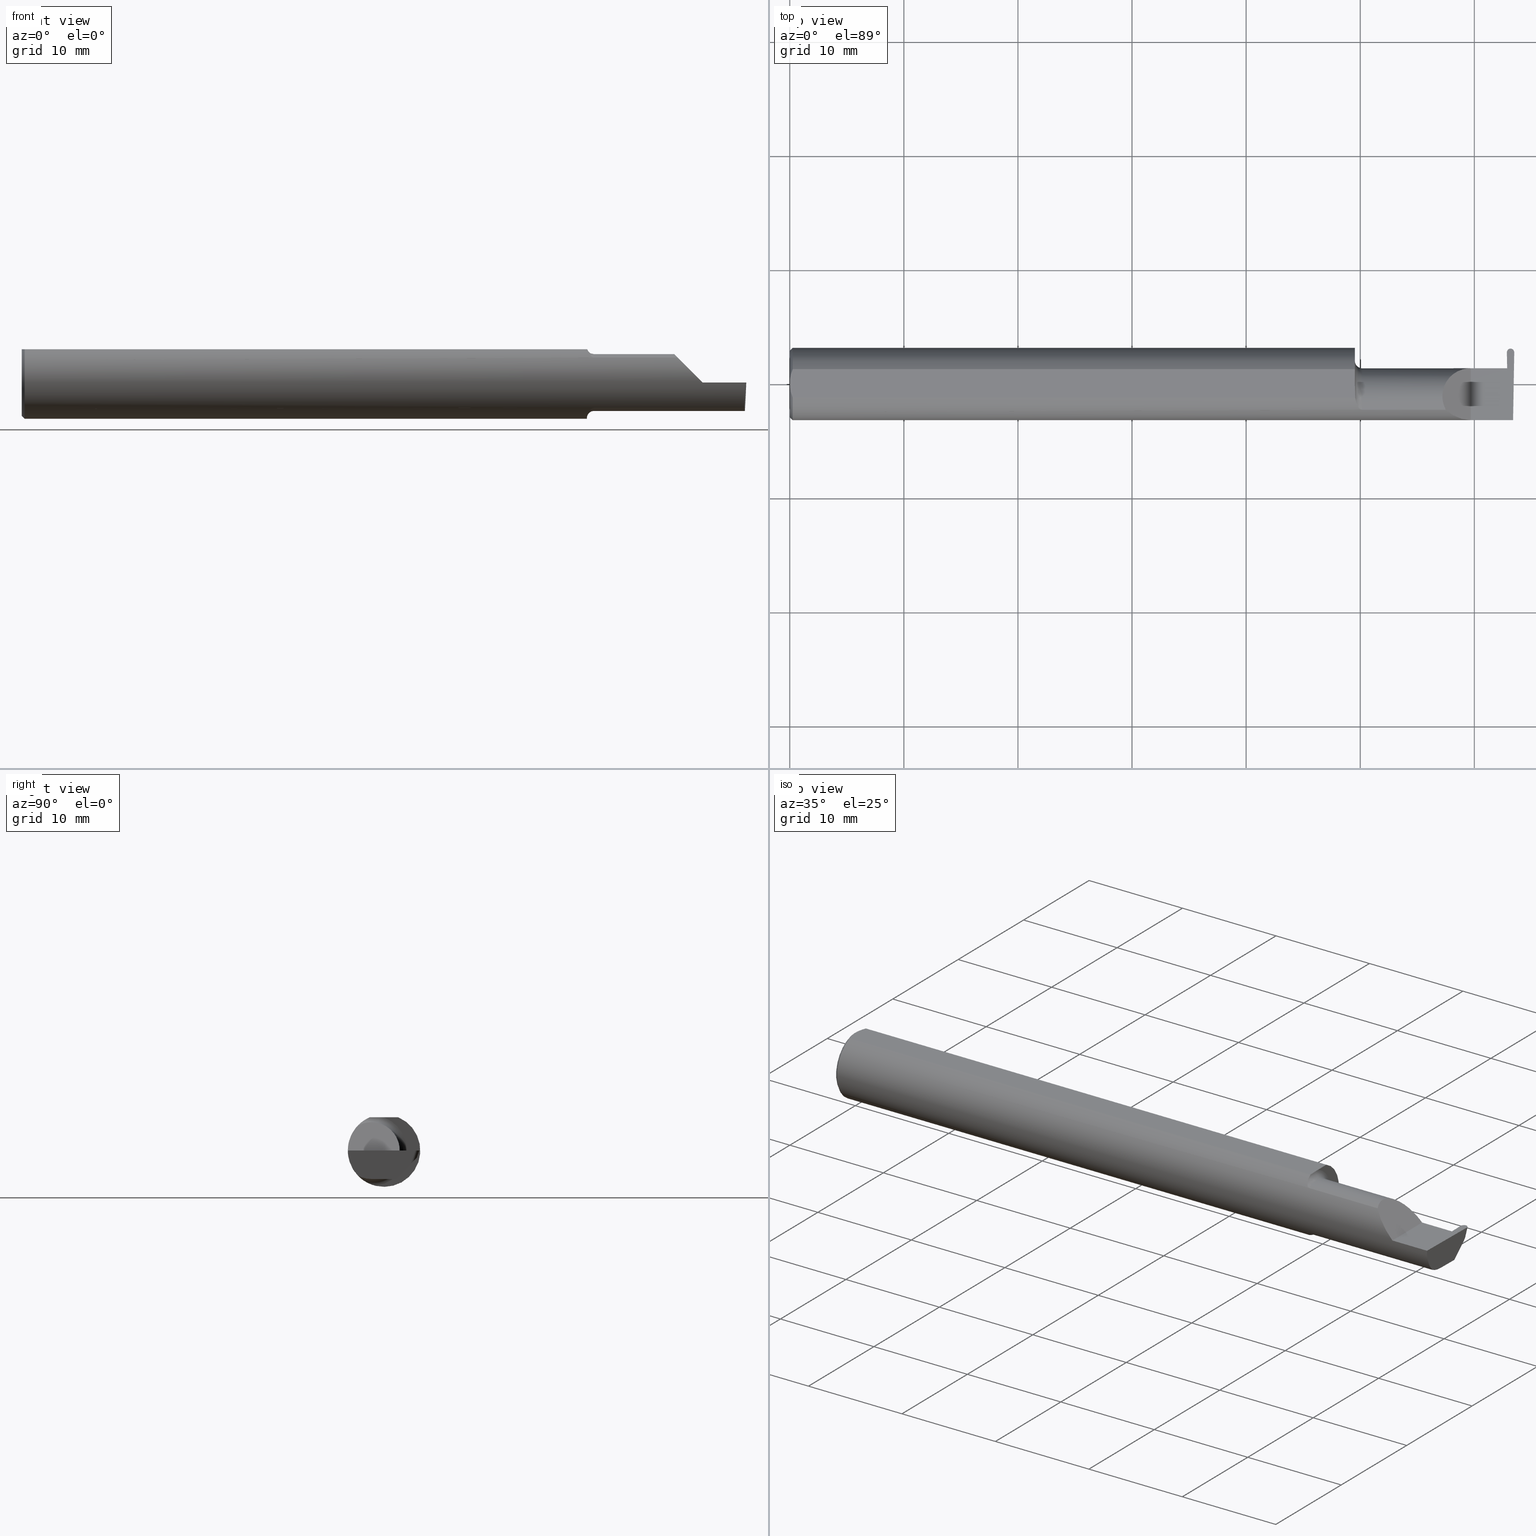
[diagram: canonical four-view strip — front | top / right | iso, engineering-drawing reading convention]
A machine part, canonical four-view strip (front | top / right | iso — engineering-drawing reading convention). The complete STEP part file that produces these views, byte-faithful:
ISO-10303-21;
HEADER;
FILE_DESCRIPTION (( 'STEP AP203' ),
    '1' );
FILE_NAME ('221930-GFR025Q-8.STEP',
    '2024-06-17T19:22:54',
    ( '' ),
    ( '' ),
    'SwSTEP 2.0',
    'SolidWorks 2022',
    '' );
FILE_SCHEMA (( 'CONFIG_CONTROL_DESIGN' ));
ENDSEC;

DATA;
#1 = CARTESIAN_POINT ( 'NONE',  ( 2.469171538508045938, 0.05392042564182090991, -0.002278711475641555326 ) ) ;
#2 = APPLICATION_PROTOCOL_DEFINITION ( 'international standard', 'config_control_design', 1994, #112 ) ;
#3 = ORIENTED_EDGE ( 'NONE', *, *, #333, .T. ) ;
#4 = CARTESIAN_POINT ( 'NONE',  ( 2.479037770930199169, -0.04400000000000004602, -0.09800000000000003153 ) ) ;
#5 = PRODUCT_RELATED_PRODUCT_CATEGORY ( 'detail', '', ( #178 ) ) ;
#6 = CARTESIAN_POINT ( 'NONE',  ( 2.350000000000000089, -0.2500000000000000555, 1.836970198721028825E-17 ) ) ;
#7 = CARTESIAN_POINT ( 'NONE',  ( 2.474480521353160878, 0.1085065156349823701, 0.0001752603556490770550 ) ) ;
#8 = AXIS2_PLACEMENT_3D ( 'NONE', #546, #544, #492 ) ;
#9 = CARTESIAN_POINT ( 'NONE',  ( 1.950000000000000178, -0.008475349815722598920, 0.1149999999999999217 ) ) ;
#10 = DIRECTION ( 'NONE',  ( 0.000000000000000000, -0.9993908270190957621, 0.03489949670250104552 ) ) ;
#11 = COORDINATED_UNIVERSAL_TIME_OFFSET ( 8, 0, .BEHIND. ) ;
#12 = DIRECTION ( 'NONE',  ( 0.000000000000000000, -1.000000000000000000, 0.000000000000000000 ) ) ;
#13 = ORIENTED_EDGE ( 'NONE', *, *, #568, .T. ) ;
#14 = APPROVAL_DATE_TIME ( #125, #445 ) ;
#15 = EDGE_CURVE ( 'NONE', #106, #419, #388, .T. ) ;
#16 = CARTESIAN_POINT ( 'NONE',  ( 2.478970497252991567, 0.01027834358092152844, -0.09800000000000010092 ) ) ;
#17 = ORIENTED_EDGE ( 'NONE', *, *, #48, .T. ) ;
#18 = APPROVAL_PERSON_ORGANIZATION ( #552, #547, #175 ) ;
#19 = APPROVAL_STATUS ( 'not_yet_approved' ) ;
#20 = CARTESIAN_POINT ( 'NONE',  ( 2.477607449706652254, 0.04997501107658569586, -0.06098225869090267287 ) ) ;
#21 = EDGE_LOOP ( 'NONE', ( #124, #70, #361, #74, #688 ) ) ;
#22 = EDGE_LOOP ( 'NONE', ( #75, #159, #533, #348 ) ) ;
#23 = B_SPLINE_CURVE_WITH_KNOTS ( 'NONE', 3,
 ( #637, #410, #148, #212, #354, #93, #470, #153, #685, #632, #359, #579 ),
 .UNSPECIFIED., .F., .F.,
 ( 4, 2, 2, 2, 2, 4 ),
 ( 1.964009442425878487E-07, 0.0001304774066965833025, 0.0002607584124489240127, 0.0005213204239535911217, 0.001042444446962923713, 0.002084692492981589981 ),
 .UNSPECIFIED. ) ;
#24 = PERSON_AND_ORGANIZATION ( #472, #177 ) ;
#25 = CARTESIAN_POINT ( 'NONE',  ( 2.475680983646864952, 0.05376127692546277259, -0.006836134426924195436 ) ) ;
#26 = EDGE_CURVE ( 'NONE', #485, #621, #521, .T. ) ;
#27 = DATE_TIME_ROLE ( 'creation_date' ) ;
#28 = EDGE_LOOP ( 'NONE', ( #52, #150, #558, #133 ) ) ;
#29 = CARTESIAN_POINT ( 'NONE',  ( 0.000000000000000000, 0.000000000000000000, 0.000000000000000000 ) ) ;
#30 = AXIS2_PLACEMENT_3D ( 'NONE', #382, #58, #372 ) ;
#31 = VECTOR ( 'NONE', #55, 39.37007874015748143 ) ;
#32 = CARTESIAN_POINT ( 'NONE',  ( 2.499988124127622946, 0.1084461686550173415, 0.000000000000000000 ) ) ;
#33 = LINE ( 'NONE', #462, #604 ) ;
#34 = ORIENTED_EDGE ( 'NONE', *, *, #276, .F. ) ;
#35 = CARTESIAN_POINT ( 'NONE',  ( 1.951395249340564853, -0.04087966525279052715, 0.1149999999999999495 ) ) ;
#36 = FACE_OUTER_BOUND ( 'NONE', #610, .T. ) ;
#37 = ORIENTED_EDGE ( 'NONE', *, *, #429, .F. ) ;
#38 = CARTESIAN_POINT ( 'NONE',  ( 2.487237909999999275, 0.1206404580714356134, -0.003948396457592995464 ) ) ;
#39 = ADVANCED_FACE ( 'NONE', ( #108 ), #700, .F. ) ;
#40 = EDGE_CURVE ( 'NONE', #500, #106, #587, .T. ) ;
#41 = DIRECTION ( 'NONE',  ( 1.000000000000000000, -0.000000000000000000, -0.000000000000000000 ) ) ;
#42 = DIRECTION ( 'NONE',  ( -1.000000000000000000, -3.255450358112149836E-17, -0.000000000000000000 ) ) ;
#43 = CIRCLE ( 'NONE', #490, 0.1149999999999997274 ) ;
#44 = DIRECTION ( 'NONE',  ( -1.224646799147352468E-16, 0.000000000000000000, -1.000000000000000000 ) ) ;
#45 = DIRECTION ( 'NONE',  ( -0.001239419280281402105, 0.9999992319196288060, 0.000000000000000000 ) ) ;
#46 = ORIENTED_EDGE ( 'NONE', *, *, #429, .T. ) ;
#47 = DIRECTION ( 'NONE',  ( -1.000000000000000000, -3.255450358112149836E-17, -0.000000000000000000 ) ) ;
#48 = EDGE_CURVE ( 'NONE', #337, #677, #59, .T. ) ;
#49 = LINE ( 'NONE', #317, #560 ) ;
#50 = EDGE_LOOP ( 'NONE', ( #37, #221, #157, #459, #679 ) ) ;
#51 = ORIENTED_EDGE ( 'NONE', *, *, #613, .F. ) ;
#52 = ORIENTED_EDGE ( 'NONE', *, *, #269, .F. ) ;
#53 = AXIS2_PLACEMENT_3D ( 'NONE', #187, #620, #181 ) ;
#54 = CARTESIAN_POINT ( 'NONE',  ( 2.494904346843567211, 0.1219999999999999557, -1.801393336792326575E-17 ) ) ;
#55 = DIRECTION ( 'NONE',  ( -0.000000000000000000, 1.000000000000000000, -0.000000000000000000 ) ) ;
#56 = ORIENTED_EDGE ( 'NONE', *, *, #667, .T. ) ;
#57 = ADVANCED_FACE ( 'NONE', ( #534 ), #166, .F. ) ;
#58 = DIRECTION ( 'NONE',  ( 1.000000000000000000, 3.255450358112149836E-17, 0.000000000000000000 ) ) ;
#59 =( BOUNDED_CURVE ( )  B_SPLINE_CURVE ( 3, ( #682, #295, #479, #312 ),
 .UNSPECIFIED., .F., .T. ) 
 B_SPLINE_CURVE_WITH_KNOTS ( ( 4, 4 ),
 ( 4.712388980384689674, 5.474523801125206646 ),
 .UNSPECIFIED. ) 
 CURVE ( )  GEOMETRIC_REPRESENTATION_ITEM ( )  RATIONAL_B_SPLINE_CURVE ( ( 1.000000000000000000, 0.9521787881681383903, 0.9521787881681383903, 1.000000000000000000 ) ) 
 REPRESENTATION_ITEM ( '' )  );
#60 = PLANE ( 'NONE',  #318 ) ;
#61 = EDGE_CURVE ( 'NONE', #336, #383, #376, .T. ) ;
#62 = DIRECTION ( 'NONE',  ( 0.000000000000000000, -1.000000000000000000, 0.000000000000000000 ) ) ;
#63 = CIRCLE ( 'NONE', #365, 0.1250000000000000000 ) ;
#64 = LINE ( 'NONE', #323, #422 ) ;
#65 = AXIS2_PLACEMENT_3D ( 'NONE', #672, #498, #72 ) ;
#66 = ORIENTED_EDGE ( 'NONE', *, *, #91, .T. ) ;
#67 = COORDINATED_UNIVERSAL_TIME_OFFSET ( 8, 0, .BEHIND. ) ;
#68 = MANIFOLD_SOLID_BREP ( 'Radii', #327 ) ;
#69 = FACE_OUTER_BOUND ( 'NONE', #254, .T. ) ;
#70 = ORIENTED_EDGE ( 'NONE', *, *, #220, .T. ) ;
#71 = CC_DESIGN_PERSON_AND_ORGANIZATION_ASSIGNMENT ( #554, #185, ( #215 ) ) ;
#72 = DIRECTION ( 'NONE',  ( 0.000000000000000000, 0.000000000000000000, 1.000000000000000000 ) ) ;
#73 = CARTESIAN_POINT ( 'NONE',  ( 2.350000000000000089, -0.2500000000000000555, 1.836970198721028825E-17 ) ) ;
#74 = ORIENTED_EDGE ( 'NONE', *, *, #418, .T. ) ;
#75 = ORIENTED_EDGE ( 'NONE', *, *, #633, .T. ) ;
#76 =( BOUNDED_CURVE ( )  B_SPLINE_CURVE ( 3, ( #291, #16, #20, #25 ),
 .UNSPECIFIED., .F., .T. ) 
 B_SPLINE_CURVE_WITH_KNOTS ( ( 4, 4 ),
 ( 3.176499238629678867, 4.677482395344803479 ),
 .UNSPECIFIED. ) 
 CURVE ( )  GEOMETRIC_REPRESENTATION_ITEM ( )  RATIONAL_B_SPLINE_CURVE ( ( 1.000000000000000000, 0.8209024677461134178, 0.8209024677461134178, 1.000000000000000000 ) ) 
 REPRESENTATION_ITEM ( '' )  );
#77 = DATE_AND_TIME ( #494, #100 ) ;
#78 = EDGE_CURVE ( 'NONE', #415, #416, #23, .T. ) ;
#79 = DIRECTION ( 'NONE',  ( 0.000000000000000000, 0.000000000000000000, -1.000000000000000000 ) ) ;
#80 = CC_DESIGN_PERSON_AND_ORGANIZATION_ASSIGNMENT ( #386, #564, ( #249 ) ) ;
#81 = ORIENTED_EDGE ( 'NONE', *, *, #644, .T. ) ;
#82 = ORIENTED_EDGE ( 'NONE', *, *, #333, .F. ) ;
#83 = DIRECTION ( 'NONE',  ( 1.000000000000000000, 3.255450358112149836E-17, 0.000000000000000000 ) ) ;
#84 = DIRECTION ( 'NONE',  ( 0.000000000000000000, 0.000000000000000000, -1.000000000000000000 ) ) ;
#85 = CARTESIAN_POINT ( 'NONE',  ( 1.949999999999999956, 0.1249999999999999306, 0.000000000000000000 ) ) ;
#86 = CIRCLE ( 'NONE', #570, 0.1229999999999999982 ) ;
#87 = ADVANCED_FACE ( 'NONE', ( #304 ), #527, .F. ) ;
#88 = CARTESIAN_POINT ( 'NONE',  ( 2.483678534731667664, 0.09070151142847178438, -0.09089741096424447386 ) ) ;
#89 = CARTESIAN_POINT ( 'NONE',  ( 1.974999999999999867, -0.09042045454545430405, 0.08630840862739520836 ) ) ;
#90 = DIRECTION ( 'NONE',  ( 1.000000000000000000, 0.000000000000000000, 0.000000000000000000 ) ) ;
#91 = EDGE_CURVE ( 'NONE', #581, #383, #432, .T. ) ;
#92 = LINE ( 'NONE', #360, #305 ) ;
#93 = CARTESIAN_POINT ( 'NONE',  ( 1.964104893754834658, -0.08507551663519485885, -0.09161800969921145288 ) ) ;
#94 = CARTESIAN_POINT ( 'NONE',  ( 2.224355642859858762, -0.01728409361947872563, 0.1256443571401404669 ) ) ;
#95 = ORIENTED_EDGE ( 'NONE', *, *, #120, .T. ) ;
#96 = DIRECTION ( 'NONE',  ( 1.000000000000000000, 0.000000000000000000, 0.000000000000000000 ) ) ;
#97 = VERTEX_POINT ( 'NONE', #252 ) ;
#98 = CARTESIAN_POINT ( 'NONE',  ( 2.487237909999999719, 0.1160145898896811911, -0.01735570419876528853 ) ) ;
#99 = VECTOR ( 'NONE', #417, 39.37007874015748854 ) ;
#100 = LOCAL_TIME ( 12, 22, 54.00000000000000000, #67 ) ;
#101 = EDGE_LOOP ( 'NONE', ( #668, #81, #56, #657, #615, #439 ) ) ;
#102 = EDGE_CURVE ( 'NONE', #374, #390, #309, .T. ) ;
#103 = CC_DESIGN_PERSON_AND_ORGANIZATION_ASSIGNMENT ( #266, #488, ( #178 ) ) ;
#104 = CARTESIAN_POINT ( 'NONE',  ( 0.000000000000000000, 3.414809992080329023E-17, 0.1149999999999999217 ) ) ;
#105 = CARTESIAN_POINT ( 'NONE',  ( 2.493958780969530498, -0.04088506879356339913, -0.09800000000000001765 ) ) ;
#106 = VERTEX_POINT ( 'NONE', #690 ) ;
#107 =( BOUNDED_CURVE ( )  B_SPLINE_CURVE ( 3, ( #306, #356, #98, #352 ),
 .UNSPECIFIED., .F., .T. ) 
 B_SPLINE_CURVE_WITH_KNOTS ( ( 4, 4 ),
 ( 1.570796326794922093, 1.635337627498223423 ),
 .UNSPECIFIED. ) 
 CURVE ( )  GEOMETRIC_REPRESENTATION_ITEM ( )  RATIONAL_B_SPLINE_CURVE ( ( 1.000000000000000000, 0.9996528984993393596, 0.9996528984993393596, 1.000000000000000000 ) ) 
 REPRESENTATION_ITEM ( '' )  );
#108 = FACE_OUTER_BOUND ( 'NONE', #226, .T. ) ;
#109 = CARTESIAN_POINT ( 'NONE',  ( 1.951278290187155484, -0.04898979485567042658, 0.1149999999999999217 ) ) ;
#110 = ORIENTED_EDGE ( 'NONE', *, *, #508, .F. ) ;
#111 = DIRECTION ( 'NONE',  ( -0.01745240643727864055, -0.9998476951563912696, 0.000000000000000000 ) ) ;
#112 = APPLICATION_CONTEXT ( 'configuration controlled 3d designs of mechanical parts and assemblies' ) ;
#113 = EDGE_CURVE ( 'NONE', #586, #419, #380, .T. ) ;
#114 = DIRECTION ( 'NONE',  ( 1.000000000000000000, 0.000000000000000000, 0.000000000000000000 ) ) ;
#115 = ORIENTED_EDGE ( 'NONE', *, *, #301, .F. ) ;
#116 = AXIS2_PLACEMENT_3D ( 'NONE', #29, #240, #176 ) ;
#117 = DIRECTION ( 'NONE',  ( -0.01745240643727214574, 0.9998476951563914916, -0.000000000000000000 ) ) ;
#118 = DIRECTION ( 'NONE',  ( 0.000000000000000000, -0.9455185755993166241, 0.3255681544571570885 ) ) ;
#119 = CARTESIAN_POINT ( 'NONE',  ( 2.474487695872377380, 0.1084461686550174248, 0.000000000000000000 ) ) ;
#120 = EDGE_CURVE ( 'NONE', #390, #586, #64, .T. ) ;
#121 = DIRECTION ( 'NONE',  ( -1.000000000000000000, -3.255450358112149836E-17, -0.000000000000000000 ) ) ;
#122 = CARTESIAN_POINT ( 'NONE',  ( -3.937007874019685528E-05, 0.1219999999999999835, 0.000000000000000000 ) ) ;
#123 = CARTESIAN_POINT ( 'NONE',  ( 2.495818186131870231, 0.04836818798314927031, -0.08936794929789945718 ) ) ;
#124 = ORIENTED_EDGE ( 'NONE', *, *, #113, .T. ) ;
#125 = DATE_AND_TIME ( #665, #139 ) ;
#126 = CARTESIAN_POINT ( 'NONE',  ( 0.000000000000000000, 0.000000000000000000, -0.1149999999999997274 ) ) ;
#127 = ORIENTED_EDGE ( 'NONE', *, *, #301, .T. ) ;
#128 = CARTESIAN_POINT ( 'NONE',  ( 2.469012389791687578, 0.05376127692546275177, -0.006836134426924675087 ) ) ;
#129 = VERTEX_POINT ( 'NONE', #170 ) ;
#130 =( BOUNDED_CURVE ( )  B_SPLINE_CURVE ( 3, ( #290, #201, #149, #414 ),
 .UNSPECIFIED., .F., .T. ) 
 B_SPLINE_CURVE_WITH_KNOTS ( ( 4, 4 ),
 ( 0.3451966888489937380, 1.107331509589511098 ),
 .UNSPECIFIED. ) 
 CURVE ( )  GEOMETRIC_REPRESENTATION_ITEM ( )  RATIONAL_B_SPLINE_CURVE ( ( 1.000000000000000000, 0.9521787881681382792, 0.9521787881681382792, 1.000000000000000000 ) ) 
 REPRESENTATION_ITEM ( '' )  );
#131 = DIRECTION ( 'NONE',  ( 1.000000000000000000, -0.000000000000000000, -0.000000000000000000 ) ) ;
#132 = ORIENTED_EDGE ( 'NONE', *, *, #163, .T. ) ;
#133 = ORIENTED_EDGE ( 'NONE', *, *, #313, .T. ) ;
#135 = EDGE_CURVE ( 'NONE', #607, #621, #446, .T. ) ;
#134 =( BOUNDED_CURVE ( )  B_SPLINE_CURVE ( 3, ( #136, #238, #511, #609 ),
 .UNSPECIFIED., .F., .T. ) 
 B_SPLINE_CURVE_WITH_KNOTS ( ( 4, 4 ),
 ( 3.187272100709560796, 4.698656506723038362 ),
 .UNSPECIFIED. ) 
 CURVE ( )  GEOMETRIC_REPRESENTATION_ITEM ( )  RATIONAL_B_SPLINE_CURVE ( ( 1.000000000000000000, 0.8185313399132075896, 0.8185313399132075896, 1.000000000000000000 ) ) 
 REPRESENTATION_ITEM ( '' )  );
#136 = CARTESIAN_POINT ( 'NONE',  ( 2.487237909999999719, 0.1136933171596532927, -0.02404282012139470973 ) ) ;
#137 = VERTEX_POINT ( 'NONE', #272 ) ;
#138 = CONICAL_SURFACE ( 'NONE', #223, 0.1149999999999997274, 0.7853981633974407295 ) ;
#139 = LOCAL_TIME ( 12, 22, 54.00000000000000000, #440 ) ;
#140 = CARTESIAN_POINT ( 'NONE',  ( 0.01000000000000042348, 0.000000000000000000, -0.1250000000000000000 ) ) ;
#141 = PLANE ( 'NONE',  #53 ) ;
#142 = CARTESIAN_POINT ( 'NONE',  ( 2.672413070268786939, -0.04399999999999996969, -0.09800000000000001765 ) ) ;
#143 = CARTESIAN_POINT ( 'NONE',  ( 2.224737910000000429, -0.09042045454545435956, 0.08630840862739518060 ) ) ;
#144 = EDGE_LOOP ( 'NONE', ( #401, #46, #692, #393, #563, #284 ) ) ;
#145 = EDGE_CURVE ( 'NONE', #509, #351, #611, .T. ) ;
#146 = CARTESIAN_POINT ( 'NONE',  ( 0.000000000000000000, 0.000000000000000000, 0.000000000000000000 ) ) ;
#147 = CARTESIAN_POINT ( 'NONE',  ( 1.960996102358257609, -0.08116363444210958344, 0.09515685373890778176 ) ) ;
#148 = CARTESIAN_POINT ( 'NONE',  ( 1.971593478233292007, -0.08999923832592927886, -0.08675238105120941512 ) ) ;
#149 = CARTESIAN_POINT ( 'NONE',  ( 2.494776490973177552, -0.1250000000000000278, -0.03254916765648421806 ) ) ;
#150 = ORIENTED_EDGE ( 'NONE', *, *, #592, .T. ) ;
#151 =( BOUNDED_CURVE ( )  B_SPLINE_CURVE ( 3, ( #255, #543, #517, #358 ),
 .UNSPECIFIED., .F., .T. ) 
 B_SPLINE_CURVE_WITH_KNOTS ( ( 4, 4 ),
 ( 4.726121454046343651, 6.237505860059813223 ),
 .UNSPECIFIED. ) 
 CURVE ( )  GEOMETRIC_REPRESENTATION_ITEM ( )  RATIONAL_B_SPLINE_CURVE ( ( 1.000000000000000000, 0.8185313399132094769, 0.8185313399132094769, 1.000000000000000000 ) ) 
 REPRESENTATION_ITEM ( '' )  );
#152 = CARTESIAN_POINT ( 'NONE',  ( 1.949999999999999956, -0.02763636363636367069, -0.1219066503721543265 ) ) ;
#153 = CARTESIAN_POINT ( 'NONE',  ( 1.957957287629478849, -0.07583111505166782729, -0.09955951024620247891 ) ) ;
#154 = DIRECTION ( 'NONE',  ( 0.7071067811865530128, 0.000000000000000000, -0.7071067811865421326 ) ) ;
#155 = ORIENTED_EDGE ( 'NONE', *, *, #612, .F. ) ;
#156 = PLANE ( 'NONE',  #434 ) ;
#157 = ORIENTED_EDGE ( 'NONE', *, *, #15, .F. ) ;
#158 = CARTESIAN_POINT ( 'NONE',  ( 1.950474906351724824, -0.01657217611524270523, 0.1149999999999999217 ) ) ;
#159 = ORIENTED_EDGE ( 'NONE', *, *, #612, .T. ) ;
#160 = CARTESIAN_POINT ( 'NONE',  ( -3.937007874019685528E-05, 0.03973613728104881393, -0.09800000000000001765 ) ) ;
#161 =( NAMED_UNIT ( * ) SI_UNIT ( $, .STERADIAN. ) SOLID_ANGLE_UNIT ( ) );
#162 = DIRECTION ( 'NONE',  ( 3.255450358112149836E-17, -1.000000000000000000, 0.000000000000000000 ) ) ;
#163 = EDGE_CURVE ( 'NONE', #416, #697, #281, .T. ) ;
#164 = FACE_OUTER_BOUND ( 'NONE', #144, .T. ) ;
#165 = ADVANCED_FACE ( 'NONE', ( #274 ), #599, .T. ) ;
#166 = TOROIDAL_SURFACE ( 'NONE', #199, 0.1229999999999999982, 0.02499999999999993547 ) ;
#167 = VECTOR ( 'NONE', #691, 39.37007874015748143 ) ;
#168 = CARTESIAN_POINT ( 'NONE',  ( 1.949999999999999956, -0.04400000000000006684, 0.000000000000000000 ) ) ;
#169 = DIRECTION ( 'NONE',  ( 0.000000000000000000, -0.3255681544571570885, -0.9455185755993166241 ) ) ;
#170 = CARTESIAN_POINT ( 'NONE',  ( 1.949999999999999956, -0.0003651515414570241560, 0.1149999999999999217 ) ) ;
#171 = EDGE_LOOP ( 'NONE', ( #643, #188, #66, #207 ) ) ;
#172 = EDGE_CURVE ( 'NONE', #509, #671, #442, .T. ) ;
#173 = DIRECTION ( 'NONE',  ( 0.000000000000000000, -0.03489949670250104552, -0.9993908270190957621 ) ) ;
#174 = ORIENTED_EDGE ( 'NONE', *, *, #510, .F. ) ;
#175 = APPROVAL_ROLE ( '' ) ;
#176 = DIRECTION ( 'NONE',  ( 0.000000000000000000, 0.000000000000000000, -1.000000000000000000 ) ) ;
#177 = ORGANIZATION ( 'UNSPECIFIED', 'UNSPECIFIED', '' ) ;
#178 = PRODUCT ( '221930-GFR025Q-8', '221930-GFR025Q-8', '', ( #596 ) ) ;
#179 = CALENDAR_DATE ( 2024, 17, 6 ) ;
#180 = VERTEX_POINT ( 'NONE', #126 ) ;
#181 = DIRECTION ( 'NONE',  ( 1.000000000000000000, 0.000000000000000000, -0.000000000000000000 ) ) ;
#182 = ORIENTED_EDGE ( 'NONE', *, *, #654, .F. ) ;
#183 = VERTEX_POINT ( 'NONE', #4 ) ;
#184 = ADVANCED_FACE ( 'NONE', ( #69 ), #324, .F. ) ;
#185 = PERSON_AND_ORGANIZATION_ROLE ( 'classification_officer' ) ;
#186 = EDGE_LOOP ( 'NONE', ( #562, #505, #258, #341, #447 ) ) ;
#187 = CARTESIAN_POINT ( 'NONE',  ( 2.672413070268786939, -0.04399999999999996969, -0.09800000000000001765 ) ) ;
#188 = ORIENTED_EDGE ( 'NONE', *, *, #357, .F. ) ;
#189 = CIRCLE ( 'NONE', #271, 0.09800000000000005929 ) ;
#190 = VECTOR ( 'NONE', #426, 39.37007874015748854 ) ;
#191 = CARTESIAN_POINT ( 'NONE',  ( 1.541666659510484467E-16, -0.008419750986449443114, 0.1149999999999999356 ) ) ;
#192 = ORIENTED_EDGE ( 'NONE', *, *, #633, .F. ) ;
#193 = CARTESIAN_POINT ( 'NONE',  ( 2.475438057281342807, 0.05399999999999999245, 0.000000000000000000 ) ) ;
#194 = EDGE_CURVE ( 'NONE', #697, #383, #656, .T. ) ;
#195 = CC_DESIGN_PERSON_AND_ORGANIZATION_ASSIGNMENT ( #24, #396, ( #368 ) ) ;
#196 = DIRECTION ( 'NONE',  ( 1.000000000000000000, 0.000000000000000000, 0.000000000000000000 ) ) ;
#197 = DIRECTION ( 'NONE',  ( -0.03867711768363093355, -0.3253245514560478280, -0.9448111011136607340 ) ) ;
#198 = ORIENTED_EDGE ( 'NONE', *, *, #377, .F. ) ;
#199 = AXIS2_PLACEMENT_3D ( 'NONE', #645, #47, #162 ) ;
#200 = APPROVAL_PERSON_ORGANIZATION ( #449, #398, #334 ) ;
#201 = CARTESIAN_POINT ( 'NONE',  ( 2.493932522392287687, -0.1128945894460738480, -0.06276352435079118885 ) ) ;
#202 = CARTESIAN_POINT ( 'NONE',  ( 1.970169762358927823, -0.08954173371313516039, 0.08723520050113862945 ) ) ;
#203 = CARTESIAN_POINT ( 'NONE',  ( 2.474349256391881191, 0.1163773611807861486, 1.865347047243944014E-17 ) ) ;
#204 = ADVANCED_FACE ( 'NONE', ( #164 ), #431, .F. ) ;
#205 = CC_DESIGN_PERSON_AND_ORGANIZATION_ASSIGNMENT ( #342, #497, ( #249 ) ) ;
#206 = DIRECTION ( 'NONE',  ( 0.000000000000000000, 0.000000000000000000, -1.000000000000000000 ) ) ;
#207 = ORIENTED_EDGE ( 'NONE', *, *, #61, .F. ) ;
#208 = FACE_OUTER_BOUND ( 'NONE', #101, .T. ) ;
#209 = DIRECTION ( 'NONE',  ( -1.000000000000000000, 0.000000000000000000, 1.224646799147352468E-16 ) ) ;
#210 = CARTESIAN_POINT ( 'NONE',  ( 2.495366029356153703, 0.03973613728104880699, -0.09800000000000001765 ) ) ;
#211 = EDGE_LOOP ( 'NONE', ( #132, #600, #262 ) ) ;
#212 = CARTESIAN_POINT ( 'NONE',  ( 1.968701570004388168, -0.08871861273376825674, -0.08806160498138397574 ) ) ;
#213 = VECTOR ( 'NONE', #400, 39.37007874015748143 ) ;
#214 = DIRECTION ( 'NONE',  ( 0.9992386149554827179, 0.01744177490281879905, 0.03489949670250104552 ) ) ;
#215 = SECURITY_CLASSIFICATION ( '', '', #507 ) ;
#216 = VERTEX_POINT ( 'NONE', #594 ) ;
#217 = EDGE_CURVE ( 'NONE', #129, #416, #86, .T. ) ;
#218 = CARTESIAN_POINT ( 'NONE',  ( 2.474546451406710812, 0.1591840982854693665, 0.02144796100442187062 ) ) ;
#219 = ORIENTED_EDGE ( 'NONE', *, *, #397, .F. ) ;
#220 = EDGE_CURVE ( 'NONE', #419, #325, #268, .T. ) ;
#221 = ORIENTED_EDGE ( 'NONE', *, *, #220, .F. ) ;
#222 = DIRECTION ( 'NONE',  ( -1.000000000000000000, -0.000000000000000000, -0.000000000000000000 ) ) ;
#223 = AXIS2_PLACEMENT_3D ( 'NONE', #578, #96, #524 ) ;
#224 = CC_DESIGN_SECURITY_CLASSIFICATION ( #215, ( #249 ) ) ;
#225 = FACE_OUTER_BOUND ( 'NONE', #499, .T. ) ;
#226 = EDGE_LOOP ( 'NONE', ( #523, #237 ) ) ;
#227 = ADVANCED_FACE ( 'NONE', ( #225 ), #263, .F. ) ;
#228 = FACE_OUTER_BOUND ( 'NONE', #244, .T. ) ;
#229 = DATE_AND_TIME ( #326, #549 ) ;
#230 = PLANE ( 'NONE',  #525 ) ;
#231 = SHAPE_DEFINITION_REPRESENTATION ( #275, #658 ) ;
#232 = VECTOR ( 'NONE', #363, 39.37007874015748854 ) ;
#233 = LOCAL_TIME ( 12, 22, 54.00000000000000000, #669 ) ;
#234 = ORIENTED_EDGE ( 'NONE', *, *, #466, .T. ) ;
#235 = ORIENTED_EDGE ( 'NONE', *, *, #120, .F. ) ;
#236 = FACE_OUTER_BOUND ( 'NONE', #211, .T. ) ;
#237 = ORIENTED_EDGE ( 'NONE', *, *, #269, .T. ) ;
#238 = CARTESIAN_POINT ( 'NONE',  ( 2.494313533883271372, 0.1129524239477167485, -0.02478371333333126078 ) ) ;
#239 = CALENDAR_DATE ( 2024, 17, 6 ) ;
#240 = DIRECTION ( 'NONE',  ( -1.000000000000000000, -0.000000000000000000, -0.000000000000000000 ) ) ;
#241 = ADVANCED_FACE ( 'NONE', ( #228 ), #384, .T. ) ;
#242 = CARTESIAN_POINT ( 'NONE',  ( 0.01000000000000042348, 0.000000000000000000, 0.000000000000000000 ) ) ;
#243 = CARTESIAN_POINT ( 'NONE',  ( 0.004414142251465132810, -0.03315347577847933824, 0.1149999999999999356 ) ) ;
#244 = EDGE_LOOP ( 'NONE', ( #577, #110, #425, #13, #506, #639, #288, #82, #192, #407 ) ) ;
#245 = CARTESIAN_POINT ( 'NONE',  ( 1.951184456069809281, -0.03277259381767837210, 0.1149999999999999356 ) ) ;
#246 = CARTESIAN_POINT ( 'NONE',  ( 2.493620144954195261, -0.06028551311893192571, -0.09800000000000008704 ) ) ;
#247 = DIRECTION ( 'NONE',  ( 0.000000000000000000, 0.000000000000000000, -1.000000000000000000 ) ) ;
#248 = AXIS2_PLACEMENT_3D ( 'NONE', #85, #83, #515 ) ;
#249 = PRODUCT_DEFINITION_FORMATION_WITH_SPECIFIED_SOURCE ( 'ANY', '', #178, .NOT_KNOWN. ) ;
#250 = ORIENTED_EDGE ( 'NONE', *, *, #389, .F. ) ;
#251 = CARTESIAN_POINT ( 'NONE',  ( 0.01000000000000042348, 0.04898979485566374442, 0.1149999999999999217 ) ) ;
#252 = CARTESIAN_POINT ( 'NONE',  ( 2.487237909999999719, 0.1136933171596532927, -0.02404282012139470973 ) ) ;
#253 = CARTESIAN_POINT ( 'NONE',  ( 2.263691591372603895, -0.09042045454545441507, 0.08630840862739512509 ) ) ;
#254 = EDGE_LOOP ( 'NONE', ( #590, #635, #452, #455, #477, #307 ) ) ;
#255 = CARTESIAN_POINT ( 'NONE',  ( 2.476316390238905374, 0.09306448537118879039, -0.04467165190985945139 ) ) ;
#256 = CARTESIAN_POINT ( 'NONE',  ( 2.469012389791687578, 0.05376127692546275177, -0.006836134426924675087 ) ) ;
#257 = FACE_OUTER_BOUND ( 'NONE', #300, .T. ) ;
#258 = ORIENTED_EDGE ( 'NONE', *, *, #644, .F. ) ;
#259 = ORIENTED_EDGE ( 'NONE', *, *, #613, .T. ) ;
#260 = DIRECTION ( 'NONE',  ( -3.255450358112149836E-17, 1.000000000000000000, 0.000000000000000000 ) ) ;
#261 = ADVANCED_FACE ( 'NONE', ( #550 ), #230, .F. ) ;
#262 = ORIENTED_EDGE ( 'NONE', *, *, #217, .T. ) ;
#263 = PLANE ( 'NONE',  #652 ) ;
#264 = ORIENTED_EDGE ( 'NONE', *, *, #102, .T. ) ;
#265 = CARTESIAN_POINT ( 'NONE',  ( 2.483355752434689645, 0.1412390592022552127, 0.09503659196759348116 ) ) ;
#266 = PERSON_AND_ORGANIZATION ( #472, #177 ) ;
#267 = LINE ( 'NONE', #412, #626 ) ;
#268 = LINE ( 'NONE', #7, #316 ) ;
#269 = EDGE_CURVE ( 'NONE', #180, #581, #43, .T. ) ;
#270 = APPROVAL_STATUS ( 'not_yet_approved' ) ;
#271 = AXIS2_PLACEMENT_3D ( 'NONE', #687, #42, #638 ) ;
#272 = CARTESIAN_POINT ( 'NONE',  ( 2.493904409643075581, -0.04399999999999996969, -0.09800000000000001765 ) ) ;
#273 = DATE_AND_TIME ( #239, #233 ) ;
#274 = FACE_OUTER_BOUND ( 'NONE', #50, .T. ) ;
#275 = PRODUCT_DEFINITION_SHAPE ( 'NONE', 'NONE',  #368 ) ;
#276 = EDGE_CURVE ( 'NONE', #97, #607, #134, .T. ) ;
#277 = B_SPLINE_CURVE_WITH_KNOTS ( 'NONE', 3,
 ( #623, #405, #465, #628, #147, #297, #636, #202, #469, #89 ),
 .UNSPECIFIED., .F., .F.,
 ( 4, 2, 2, 2, 4 ),
 ( 5.067393987348957741E-07, 0.0007430328995925439273, 0.001114295979689448228, 0.001299927519737895283, 0.001485559059786342338 ),
 .UNSPECIFIED. ) ;
#278 = ORIENTED_EDGE ( 'NONE', *, *, #15, .T. ) ;
#279 = ADVANCED_FACE ( 'NONE', ( #286 ), #141, .F. ) ;
#280 = ADVANCED_FACE ( 'NONE', ( #670 ), #339, .T. ) ;
#281 = CIRCLE ( 'NONE', #30, 0.1250000000000000000 ) ;
#282 = DIRECTION ( 'NONE',  ( -1.000000000000000000, -0.000000000000000000, -0.000000000000000000 ) ) ;
#283 = AXIS2_PLACEMENT_3D ( 'NONE', #122, #118, #169 ) ;
#284 = ORIENTED_EDGE ( 'NONE', *, *, #654, .T. ) ;
#285 = ORIENTED_EDGE ( 'NONE', *, *, #61, .T. ) ;
#286 = FACE_OUTER_BOUND ( 'NONE', #22, .T. ) ;
#287 = EDGE_LOOP ( 'NONE', ( #115, #278, #496, #235, #174, #631, #641, #518, #403 ) ) ;
#288 = ORIENTED_EDGE ( 'NONE', *, *, #406, .F. ) ;
#289 = CARTESIAN_POINT ( 'NONE',  ( 2.487399542938343089, 0.1219999999999999835, 0.000000000000000000 ) ) ;
#290 = CARTESIAN_POINT ( 'NONE',  ( 2.493502479154699358, -0.09042045454545434569, -0.08630840862739518060 ) ) ;
#291 = CARTESIAN_POINT ( 'NONE',  ( 2.479037770930199169, -0.04400000000000004602, -0.09800000000000003153 ) ) ;
#292 = AXIS2_PLACEMENT_3D ( 'NONE', #598, #651, #484 ) ;
#293 = EDGE_LOOP ( 'NONE', ( #3, #675, #182, #155 ) ) ;
#294 = CARTESIAN_POINT ( 'NONE',  ( 2.350000000000000089, 0.05399999999999999245, 6.735557395310437586E-17 ) ) ;
#295 = CARTESIAN_POINT ( 'NONE',  ( 2.317450832343515899, -0.1250000000000000000, 0.03254916765648416949 ) ) ;
#296 = FACE_OUTER_BOUND ( 'NONE', #28, .T. ) ;
#297 = CARTESIAN_POINT ( 'NONE',  ( 1.964945076695559179, -0.08578123596784992255, 0.09094459933477699876 ) ) ;
#298 = CARTESIAN_POINT ( 'NONE',  ( 2.479571473156433115, 0.1219999999999999835, 1.801393336792325959E-17 ) ) ;
#299 = CARTESIAN_POINT ( 'NONE',  ( 2.493502479154699358, -0.09042045454545434569, -0.08630840862739518060 ) ) ;
#300 = EDGE_LOOP ( 'NONE', ( #259, #330, #127 ) ) ;
#301 = EDGE_CURVE ( 'NONE', #106, #351, #347, .T. ) ;
#302 = DIRECTION ( 'NONE',  ( 0.000000000000000000, 0.9455185755993165131, -0.3255681544571575325 ) ) ;
#303 = EDGE_CURVE ( 'NONE', #551, #415, #504, .T. ) ;
#304 = FACE_OUTER_BOUND ( 'NONE', #287, .T. ) ;
#305 = VECTOR ( 'NONE', #468, 39.37007874015748143 ) ;
#306 = CARTESIAN_POINT ( 'NONE',  ( 2.487237909999999275, 0.1206404580714356134, -0.003948396457592995464 ) ) ;
#307 = ORIENTED_EDGE ( 'NONE', *, *, #686, .F. ) ;
#308 = CARTESIAN_POINT ( 'NONE',  ( 1.949999999999999956, 0.05376127692546280035, -0.006836134426923812929 ) ) ;
#309 = B_SPLINE_CURVE_WITH_KNOTS ( 'NONE', 3,
 ( #256, #489, #1, #428 ),
 .UNSPECIFIED., .F., .F.,
 ( 4, 4 ),
 ( 0.000000000000000000, 1.000000000000000000 ),
 .UNSPECIFIED. ) ;
#310 = CARTESIAN_POINT ( 'NONE',  ( 0.003880275146595849479, 0.03337499979622342988, 0.1149999999999999217 ) ) ;
#311 = LINE ( 'NONE', #218, #190 ) ;
#312 = CARTESIAN_POINT ( 'NONE',  ( 2.263691591372603895, -0.09042045454545441507, 0.08630840862739512509 ) ) ;
#313 = EDGE_CURVE ( 'NONE', #421, #581, #320, .T. ) ;
#314 = LENGTH_MEASURE_WITH_UNIT ( LENGTH_MEASURE( 0.02539999999999999897 ), #430 );
#315 = CARTESIAN_POINT ( 'NONE',  ( 0.000000000000000000, 0.04898979485566374442, 0.1149999999999999217 ) ) ;
#316 = VECTOR ( 'NONE', #536, 39.37007874015748854 ) ;
#317 = CARTESIAN_POINT ( 'NONE',  ( 1.949999999999999956, 0.1249999999999999861, 0.1149999999999999217 ) ) ;
#318 = AXIS2_PLACEMENT_3D ( 'NONE', #532, #214, #646 ) ;
#319 = DIRECTION ( 'NONE',  ( 1.000000000000000000, -0.000000000000000000, -0.000000000000000000 ) ) ;
#320 = B_SPLINE_CURVE_WITH_KNOTS ( 'NONE', 3,
 ( #335, #619, #243, #394, #191, #402 ),
 .UNSPECIFIED., .F., .F.,
 ( 4, 2, 4 ),
 ( 0.001061950514642623312, 0.001696734447512964709, 0.002331518380383306322 ),
 .UNSPECIFIED. ) ;
#321 =( NAMED_UNIT ( * ) PLANE_ANGLE_UNIT ( ) SI_UNIT ( $, .RADIAN. ) );
#322 = EDGE_CURVE ( 'NONE', #480, #586, #451, .T. ) ;
#323 = CARTESIAN_POINT ( 'NONE',  ( 2.475438057281342807, 0.05399999999999999245, 0.000000000000000000 ) ) ;
#324 = PLANE ( 'NONE',  #292 ) ;
#325 = VERTEX_POINT ( 'NONE', #614 ) ;
#326 = CALENDAR_DATE ( 2024, 17, 6 ) ;
#327 = CLOSED_SHELL ( 'NONE', ( #540, #227, #280, #261, #87, #464, #444, #39, #241, #57, #343, #279, #661, #204, #681, #184, #493, #433, #165 ) ) ;
#328 = CC_DESIGN_APPROVAL ( #547, ( #215 ) ) ;
#329 = DIRECTION ( 'NONE',  ( -1.000000000000000000, -3.255450358112149836E-17, -0.000000000000000000 ) ) ;
#330 = ORIENTED_EDGE ( 'NONE', *, *, #40, .T. ) ;
#331 = CARTESIAN_POINT ( 'NONE',  ( 2.493502479154699358, -0.09042045454545434569, -0.08630840862739518060 ) ) ;
#332 = ORIENTED_EDGE ( 'NONE', *, *, #568, .F. ) ;
#333 = EDGE_CURVE ( 'NONE', #183, #480, #76, .T. ) ;
#334 = APPROVAL_ROLE ( '' ) ;
#335 = CARTESIAN_POINT ( 'NONE',  ( 0.01000000000000042348, -0.04898979485566374442, 0.1149999999999999217 ) ) ;
#336 = VERTEX_POINT ( 'NONE', #140 ) ;
#337 = VERTEX_POINT ( 'NONE', #344 ) ;
#338 = VECTOR ( 'NONE', #689, 39.37007874015748143 ) ;
#339 = CYLINDRICAL_SURFACE ( 'NONE', #65, 0.1250000000000000000 ) ;
#340 = ORIENTED_EDGE ( 'NONE', *, *, #194, .F. ) ;
#341 = ORIENTED_EDGE ( 'NONE', *, *, #397, .T. ) ;
#342 = PERSON_AND_ORGANIZATION ( #472, #177 ) ;
#343 = ADVANCED_FACE ( 'NONE', ( #236 ), #565, .T. ) ;
#344 = CARTESIAN_POINT ( 'NONE',  ( 2.350000000000000089, -0.1250000000000000278, 1.836970198721028825E-17 ) ) ;
#345 = DIMENSIONAL_EXPONENTS ( 1.000000000000000000, 0.000000000000000000, 0.000000000000000000, 0.000000000000000000, 0.000000000000000000, 0.000000000000000000, 0.000000000000000000 ) ;
#346 = CARTESIAN_POINT ( 'NONE',  ( 1.974999999999999867, -0.09042045454545430405, 0.08630840862739520836 ) ) ;
#347 = LINE ( 'NONE', #676, #513 ) ;
#348 = ORIENTED_EDGE ( 'NONE', *, *, #686, .T. ) ;
#349 = LINE ( 'NONE', #573, #99 ) ;
#350 = LINE ( 'NONE', #308, #338 ) ;
#351 = VERTEX_POINT ( 'NONE', #289 ) ;
#352 = CARTESIAN_POINT ( 'NONE',  ( 2.487237909999999719, 0.1136933171596532927, -0.02404282012139470973 ) ) ;
#353 = CARTESIAN_POINT ( 'NONE',  ( 0.01000000000000042348, -0.04898979485566374442, 0.1149999999999999217 ) ) ;
#354 = CARTESIAN_POINT ( 'NONE',  ( 1.967439721641151218, -0.08786602687380749843, -0.08891702384475583254 ) ) ;
#355 = EDGE_CURVE ( 'NONE', #607, #509, #33, .T. ) ;
#356 = CARTESIAN_POINT ( 'NONE',  ( 2.487237909999999719, 0.1183311075937133472, -0.01065523723535991701 ) ) ;
#357 = EDGE_CURVE ( 'NONE', #581, #180, #458, .T. ) ;
#358 = CARTESIAN_POINT ( 'NONE',  ( 2.487237909999999719, 0.1136933171596532927, -0.02404282012139470973 ) ) ;
#359 = CARTESIAN_POINT ( 'NONE',  ( 1.949999999999999956, -0.04088126997068486368, -0.1189040164168497365 ) ) ;
#360 = CARTESIAN_POINT ( 'NONE',  ( 3.749399456654637998E-32, -0.1249999999999999861, 3.061616997868380183E-16 ) ) ;
#361 = ORIENTED_EDGE ( 'NONE', *, *, #503, .F. ) ;
#362 = CARTESIAN_POINT ( 'NONE',  ( 2.753179778023443269, 0.1250000000000000278, 0.1149999999999999217 ) ) ;
#363 = DIRECTION ( 'NONE',  ( -0.03867711768362880331, 0.3253245514560478280, 0.9448111011136606230 ) ) ;
#364 = VECTOR ( 'NONE', #597, 39.37007874015748143 ) ;
#365 = AXIS2_PLACEMENT_3D ( 'NONE', #242, #196, #206 ) ;
#366 = LINE ( 'NONE', #105, #538 ) ;
#367 = EDGE_CURVE ( 'NONE', #551, #137, #441, .T. ) ;
#368 = PRODUCT_DEFINITION ( 'UNKNOWN', '', #249, #642 ) ;
#369 = CARTESIAN_POINT ( 'NONE',  ( 0.000000000000000000, 0.000000000000000000, 0.000000000000000000 ) ) ;
#370 = LINE ( 'NONE', #6, #31 ) ;
#371 = ORIENTED_EDGE ( 'NONE', *, *, #303, .F. ) ;
#372 = DIRECTION ( 'NONE',  ( 0.000000000000000000, 1.000000000000000000, 0.000000000000000000 ) ) ;
#373 = CARTESIAN_POINT ( 'NONE',  ( 1.949999999999999956, 0.04898979485566374442, 0.1149999999999999217 ) ) ;
#374 = VERTEX_POINT ( 'NONE', #128 ) ;
#375 = CARTESIAN_POINT ( 'NONE',  ( 2.500126563608119135, 0.1163773611807860930, -1.865347047243944322E-17 ) ) ;
#376 = CIRCLE ( 'NONE', #664, 0.1250000000000000000 ) ;
#377 = EDGE_CURVE ( 'NONE', #624, #677, #684, .T. ) ;
#378 = PLANE ( 'NONE',  #283 ) ;
#379 = CARTESIAN_POINT ( 'NONE',  ( 1.974999999999999867, -0.09042045454545437344, -0.08630840862739515285 ) ) ;
#380 = LINE ( 'NONE', #662, #640 ) ;
#381 = CARTESIAN_POINT ( 'NONE',  ( 2.263691591372603895, -0.09042045454545441507, 0.08630840862739512509 ) ) ;
#382 = CARTESIAN_POINT ( 'NONE',  ( 1.949999999999999956, 0.000000000000000000, 0.000000000000000000 ) ) ;
#383 = VERTEX_POINT ( 'NONE', #251 ) ;
#384 = CYLINDRICAL_SURFACE ( 'NONE', #387, 0.09800000000000005929 ) ;
#385 = ORIENTED_EDGE ( 'NONE', *, *, #163, .F. ) ;
#386 = PERSON_AND_ORGANIZATION ( #472, #177 ) ;
#387 = AXIS2_PLACEMENT_3D ( 'NONE', #495, #329, #12 ) ;
#388 =( BOUNDED_CURVE ( )  B_SPLINE_CURVE ( 3, ( #413, #298, #203, #481 ),
 .UNSPECIFIED., .F., .T. ) 
 B_SPLINE_CURVE_WITH_KNOTS ( ( 4, 4 ),
 ( 6.171327673818499449, 7.747253380535275014 ),
 .UNSPECIFIED. ) 
 CURVE ( )  GEOMETRIC_REPRESENTATION_ITEM ( )  RATIONAL_B_SPLINE_CURVE ( ( 1.000000000000000000, 0.8035272986452582922, 0.8035272986452582922, 1.000000000000000000 ) ) 
 REPRESENTATION_ITEM ( '' )  );
#389 = EDGE_CURVE ( 'NONE', #421, #647, #267, .T. ) ;
#390 = VERTEX_POINT ( 'NONE', #574 ) ;
#391 = APPROVAL_STATUS ( 'not_yet_approved' ) ;
#392 = APPLICATION_CONTEXT ( 'configuration controlled 3d designs of mechanical parts and assemblies' ) ;
#393 = ORIENTED_EDGE ( 'NONE', *, *, #135, .T. ) ;
#394 = CARTESIAN_POINT ( 'NONE',  ( 0.0009328476361608245343, -0.01672844127736827086, 0.1149999999999999217 ) ) ;
#395 = VERTEX_POINT ( 'NONE', #520 ) ;
#396 = PERSON_AND_ORGANIZATION_ROLE ( 'creator' ) ;
#397 = EDGE_CURVE ( 'NONE', #647, #624, #277, .T. ) ;
#398 = APPROVAL ( #19, 'UNSPECIFIED' ) ;
#399 = AXIS2_PLACEMENT_3D ( 'NONE', #625, #411, #678 ) ;
#400 = DIRECTION ( 'NONE',  ( -1.000000000000000000, -3.255450358112149836E-17, -0.000000000000000000 ) ) ;
#401 = ORIENTED_EDGE ( 'NONE', *, *, #503, .T. ) ;
#402 = CARTESIAN_POINT ( 'NONE',  ( 0.000000000000000000, 3.414809992080329023E-17, 0.1149999999999999217 ) ) ;
#403 = ORIENTED_EDGE ( 'NONE', *, *, #145, .T. ) ;
#404 = LINE ( 'NONE', #142, #436 ) ;
#405 = CARTESIAN_POINT ( 'NONE',  ( 1.952426556614195841, -0.05801934803234086446, 0.1111534264542279882 ) ) ;
#406 = EDGE_CURVE ( 'NONE', #480, #374, #350, .T. ) ;
#407 = ORIENTED_EDGE ( 'NONE', *, *, #367, .F. ) ;
#408 = CARTESIAN_POINT ( 'NONE',  ( 2.498159429761094508, 0.09306448537118866549, -0.04467165190985956935 ) ) ;
#409 = FACE_OUTER_BOUND ( 'NONE', #171, .T. ) ;
#410 = CARTESIAN_POINT ( 'NONE',  ( 1.973259114367879263, -0.09042045454545435956, -0.08630840862739518060 ) ) ;
#411 = DIRECTION ( 'NONE',  ( 0.9993699743034455407, 0.001238639365660603722, 0.03546999060124687853 ) ) ;
#412 = CARTESIAN_POINT ( 'NONE',  ( 0.000000000000000000, -0.04898979485566374442, 0.1149999999999999217 ) ) ;
#413 = CARTESIAN_POINT ( 'NONE',  ( 2.487076277061657237, 0.1219999999999999835, 0.000000000000000000 ) ) ;
#414 = CARTESIAN_POINT ( 'NONE',  ( 2.495913306096507522, -0.1250000000000000000, 0.000000000000000000 ) ) ;
#415 = VERTEX_POINT ( 'NONE', #379 ) ;
#416 = VERTEX_POINT ( 'NONE', #152 ) ;
#417 = DIRECTION ( 'NONE',  ( -0.03701368837992140975, 0.7066222423871550973, 0.7066222423871629799 ) ) ;
#418 = EDGE_CURVE ( 'NONE', #395, #480, #571, .T. ) ;
#419 = VERTEX_POINT ( 'NONE', #119 ) ;
#420 = CARTESIAN_POINT ( 'NONE',  ( 2.493904409643075581, -0.04399999999999996969, -0.09800000000000001765 ) ) ;
#421 = VERTEX_POINT ( 'NONE', #353 ) ;
#422 = VECTOR ( 'NONE', #319, 39.37007874015748143 ) ;
#423 =( CONVERSION_BASED_UNIT ( 'INCH', #314 ) LENGTH_UNIT ( ) NAMED_UNIT ( #345 ) );
#424 = ORIENTED_EDGE ( 'NONE', *, *, #145, .F. ) ;
#425 = ORIENTED_EDGE ( 'NONE', *, *, #377, .T. ) ;
#426 = DIRECTION ( 'NONE',  ( -0.02596452850600435361, 0.7068683906002055650, 0.7068683906002134476 ) ) ;
#427 = EDGE_LOOP ( 'NONE', ( #332, #443, #456 ) ) ;
#428 = CARTESIAN_POINT ( 'NONE',  ( 2.469251112866224673, 0.05399999999999999245, 0.000000000000000000 ) ) ;
#429 = EDGE_CURVE ( 'NONE', #325, #97, #151, .T. ) ;
#430 =( LENGTH_UNIT ( ) NAMED_UNIT ( * ) SI_UNIT ( $, .METRE. ) );
#431 = PLANE ( 'NONE',  #8 ) ;
#432 = B_SPLINE_CURVE_WITH_KNOTS ( 'NONE', 3,
 ( #104, #475, #310, #694 ),
 .UNSPECIFIED., .F., .F.,
 ( 4, 4 ),
 ( 0.002331518380383306322, 0.003601362264757408584 ),
 .UNSPECIFIED. ) ;
#433 = ADVANCED_FACE ( 'NONE', ( #36 ), #680, .T. ) ;
#434 = AXIS2_PLACEMENT_3D ( 'NONE', #362, #582, #693 ) ;
#435 = APPLICATION_PROTOCOL_DEFINITION ( 'international standard', 'config_control_design', 1994, #392 ) ;
#436 = VECTOR ( 'NONE', #622, 39.37007874015748143 ) ;
#437 =( BOUNDED_CURVE ( )  B_SPLINE_CURVE ( 3, ( #253, #94, #473, #294 ),
 .UNSPECIFIED., .F., .T. ) 
 B_SPLINE_CURVE_WITH_KNOTS ( ( 4, 4 ),
 ( 5.789722842198295361, 7.853981633974482790 ),
 .UNSPECIFIED. ) 
 CURVE ( )  GEOMETRIC_REPRESENTATION_ITEM ( )  RATIONAL_B_SPLINE_CURVE ( ( 1.000000000000000000, 0.6753281001527242644, 0.6753281001527242644, 1.000000000000000000 ) ) 
 REPRESENTATION_ITEM ( '' )  );
#438 = CARTESIAN_POINT ( 'NONE',  ( 2.475438057281342807, 0.05399999999999999245, 0.000000000000000000 ) ) ;
#439 = ORIENTED_EDGE ( 'NONE', *, *, #313, .F. ) ;
#440 = COORDINATED_UNIVERSAL_TIME_OFFSET ( 8, 0, .BEHIND. ) ;
#441 =( BOUNDED_CURVE ( )  B_SPLINE_CURVE ( 3, ( #331, #553, #246, #420 ),
 .UNSPECIFIED., .F., .F. ) 
 B_SPLINE_CURVE_WITH_KNOTS ( ( 4, 4 ),
 ( 6.253187659403682375, 6.746650124384973246 ),
 .UNSPECIFIED. ) 
 CURVE ( )  GEOMETRIC_REPRESENTATION_ITEM ( )  RATIONAL_B_SPLINE_CURVE ( ( 1.000000000000000000, 0.9798106333074687591, 0.9798106333074687591, 1.000000000000000000 ) ) 
 REPRESENTATION_ITEM ( '' )  );
#442 = LINE ( 'NONE', #648, #482 ) ;
#443 = ORIENTED_EDGE ( 'NONE', *, *, #48, .F. ) ;
#444 = ADVANCED_FACE ( 'NONE', ( #409 ), #138, .T. ) ;
#445 = APPROVAL ( #270, 'UNSPECIFIED' ) ;
#446 = LINE ( 'NONE', #123, #595 ) ;
#447 = ORIENTED_EDGE ( 'NONE', *, *, #508, .T. ) ;
#448 = B_SPLINE_CURVE_WITH_KNOTS ( 'NONE', 3,
 ( #569, #35, #245, #158, #9, #695 ),
 .UNSPECIFIED., .F., .F.,
 ( 4, 2, 4 ),
 ( 0.009319464280391169878, 0.009934044568937497321, 0.01054862485748382477 ),
 .UNSPECIFIED. ) ;
#449 = PERSON_AND_ORGANIZATION ( #472, #177 ) ;
#450 = VECTOR ( 'NONE', #41, 39.37007874015748143 ) ;
#451 = LINE ( 'NONE', #567, #537 ) ;
#452 = ORIENTED_EDGE ( 'NONE', *, *, #172, .T. ) ;
#453 = DATE_AND_TIME ( #179, #653 ) ;
#454 = DIRECTION ( 'NONE',  ( 0.03867711768363092661, 0.3253245514560478280, 0.9448111011136606230 ) ) ;
#455 = ORIENTED_EDGE ( 'NONE', *, *, #561, .F. ) ;
#456 = ORIENTED_EDGE ( 'NONE', *, *, #696, .T. ) ;
#457 = CARTESIAN_POINT ( 'NONE',  ( 0.000000000000000000, 0.000000000000000000, 0.000000000000000000 ) ) ;
#458 = CIRCLE ( 'NONE', #116, 0.1149999999999997274 ) ;
#459 = ORIENTED_EDGE ( 'NONE', *, *, #40, .F. ) ;
#460 = DIRECTION ( 'NONE',  ( -0.7071067811865511255, 0.000000000000000000, 0.7071067811865439090 ) ) ;
#461 = DIRECTION ( 'NONE',  ( 1.000000000000000000, 0.000000000000000000, 0.000000000000000000 ) ) ;
#462 = CARTESIAN_POINT ( 'NONE',  ( 2.499995298646839448, 0.1085065156349822868, 0.0001752603556491070331 ) ) ;
#463 = CARTESIAN_POINT ( 'NONE',  ( 2.478933986667482436, 0.03973613728104883475, -0.09800000000000000377 ) ) ;
#464 = ADVANCED_FACE ( 'NONE', ( #208 ), #156, .T. ) ;
#465 = CARTESIAN_POINT ( 'NONE',  ( 1.954267307214533567, -0.06631395538259697575, 0.1063681193386739193 ) ) ;
#466 = EDGE_CURVE ( 'NONE', #671, #337, #92, .T. ) ;
#467 = DIRECTION ( 'NONE',  ( 0.000000000000000000, 0.000000000000000000, -1.000000000000000000 ) ) ;
#468 = DIRECTION ( 'NONE',  ( -1.000000000000000000, -0.000000000000000000, -0.000000000000000000 ) ) ;
#469 = CARTESIAN_POINT ( 'NONE',  ( 1.972488493957837097, -0.09042045454585199982, 0.08630840862697869431 ) ) ;
#470 = CARTESIAN_POINT ( 'NONE',  ( 1.962379706860118089, -0.08285324498731289067, -0.09364669410973919250 ) ) ;
#471 = AXIS2_PLACEMENT_3D ( 'NONE', #146, #461, #84 ) ;
#472 = PERSON ( 'UNSPECIFIED', 'UNSPECIFIED', 'UNSPECIFIED', ('UNSPECIFIED'), ('UNSPECIFIED'), ('UNSPECIFIED') ) ;
#473 = CARTESIAN_POINT ( 'NONE',  ( 2.266956372099407258, 0.05399999999999999245, 0.08304362790059179045 ) ) ;
#474 = DIRECTION ( 'NONE',  ( 1.000000000000000000, 0.000000000000000000, 0.000000000000000000 ) ) ;
#475 = CARTESIAN_POINT ( 'NONE',  ( 1.642610067308552155E-16, 0.01684316307400865464, 0.1149999999999999217 ) ) ;
#476 = LINE ( 'NONE', #88, #167 ) ;
#477 = ORIENTED_EDGE ( 'NONE', *, *, #367, .T. ) ;
#478 = CARTESIAN_POINT ( 'NONE',  ( 2.483678534731668108, 0.07864614958958050794, -0.08674641699491572600 ) ) ;
#479 = CARTESIAN_POINT ( 'NONE',  ( 2.287236475649208067, -0.1128945894460738203, 0.06276352435079109171 ) ) ;
#480 = VERTEX_POINT ( 'NONE', #522 ) ;
#481 = CARTESIAN_POINT ( 'NONE',  ( 2.474487695872377380, 0.1084461686550174248, 0.000000000000000000 ) ) ;
#482 = VECTOR ( 'NONE', #111, 39.37007874015748854 ) ;
#483 = DIRECTION ( 'NONE',  ( -0.01745240643727864055, -0.9998476951563912696, 0.000000000000000000 ) ) ;
#484 = DIRECTION ( 'NONE',  ( 0.03490480639812536257, 0.000000000000000000, 0.9993906415863165194 ) ) ;
#485 = VERTEX_POINT ( 'NONE', #463 ) ;
#486 = EDGE_CURVE ( 'NONE', #500, #97, #107, .T. ) ;
#487 = DIRECTION ( 'NONE',  ( 0.000000000000000000, -0.9455185755993165131, 0.3255681544571575325 ) ) ;
#488 = PERSON_AND_ORGANIZATION_ROLE ( 'design_owner' ) ;
#489 = CARTESIAN_POINT ( 'NONE',  ( 2.469091964149866314, 0.05384085128364183431, -0.004557422951283111520 ) ) ;
#490 = AXIS2_PLACEMENT_3D ( 'NONE', #457, #282, #79 ) ;
#491 = APPROVAL_ROLE ( '' ) ;
#492 = DIRECTION ( 'NONE',  ( 0.000000000000000000, -0.7071067811865435759, -0.7071067811865514585 ) ) ;
#493 = ADVANCED_FACE ( 'NONE', ( #519 ), #683, .F. ) ;
#494 = CALENDAR_DATE ( 2024, 17, 6 ) ;
#495 = CARTESIAN_POINT ( 'NONE',  ( 1.949999999999999956, -0.04400000000000006684, 0.000000000000000000 ) ) ;
#496 = ORIENTED_EDGE ( 'NONE', *, *, #113, .F. ) ;
#497 = PERSON_AND_ORGANIZATION_ROLE ( 'creator' ) ;
#498 = DIRECTION ( 'NONE',  ( -1.000000000000000000, -0.000000000000000000, -0.000000000000000000 ) ) ;
#499 = EDGE_LOOP ( 'NONE', ( #618, #663, #264, #95 ) ) ;
#500 = VERTEX_POINT ( 'NONE', #38 ) ;
#501 = AXIS2_PLACEMENT_3D ( 'NONE', #478, #197, #302 ) ;
#502 = VECTOR ( 'NONE', #45, 39.37007874015748854 ) ;
#503 = EDGE_CURVE ( 'NONE', #395, #325, #349, .T. ) ;
#504 = LINE ( 'NONE', #606, #213 ) ;
#505 = ORIENTED_EDGE ( 'NONE', *, *, #217, .F. ) ;
#506 = ORIENTED_EDGE ( 'NONE', *, *, #510, .T. ) ;
#507 = SECURITY_CLASSIFICATION_LEVEL ( 'unclassified' ) ;
#508 = EDGE_CURVE ( 'NONE', #624, #415, #189, .T. ) ;
#509 = VERTEX_POINT ( 'NONE', #32 ) ;
#510 = EDGE_CURVE ( 'NONE', #216, #390, #516, .T. ) ;
#511 = CARTESIAN_POINT ( 'NONE',  ( 2.498761141946046038, 0.1045516738144956770, -0.03318446346655247459 ) ) ;
#512 = LINE ( 'NONE', #634, #674 ) ;
#513 = VECTOR ( 'NONE', #131, 39.37007874015748143 ) ;
#514 =( GEOMETRIC_REPRESENTATION_CONTEXT ( 3 ) GLOBAL_UNCERTAINTY_ASSIGNED_CONTEXT ( ( #649 ) ) GLOBAL_UNIT_ASSIGNED_CONTEXT ( ( #423, #321, #161 ) ) REPRESENTATION_CONTEXT ( 'NONE', 'WORKASPACE' ) );
#515 = DIRECTION ( 'NONE',  ( -3.255450358112149836E-17, 1.000000000000000000, 0.000000000000000000 ) ) ;
#516 = LINE ( 'NONE', #566, #673 ) ;
#517 = CARTESIAN_POINT ( 'NONE',  ( 2.480162286116728065, 0.1129524239477167485, -0.02478371333333127466 ) ) ;
#518 = ORIENTED_EDGE ( 'NONE', *, *, #172, .F. ) ;
#519 = FACE_OUTER_BOUND ( 'NONE', #293, .T. ) ;
#520 = CARTESIAN_POINT ( 'NONE',  ( 2.478521344711220209, 0.05097006188126038118, -0.08676607539978835326 ) ) ;
#521 = LINE ( 'NONE', #160, #450 ) ;
#522 = CARTESIAN_POINT ( 'NONE',  ( 2.475680983646864952, 0.05376127692546277259, -0.006836134426924195436 ) ) ;
#523 = ORIENTED_EDGE ( 'NONE', *, *, #357, .T. ) ;
#524 = DIRECTION ( 'NONE',  ( 0.000000000000000000, 0.000000000000000000, -1.000000000000000000 ) ) ;
#525 = AXIS2_PLACEMENT_3D ( 'NONE', #73, #666, #460 ) ;
#526 = CC_DESIGN_DATE_AND_TIME_ASSIGNMENT ( #453, #27, ( #368 ) ) ;
#527 = PLANE ( 'NONE',  #617 ) ;
#528 = AXIS2_PLACEMENT_3D ( 'NONE', #589, #593, #114 ) ;
#529 = CARTESIAN_POINT ( 'NONE',  ( 2.479038067985627869, -0.04423967289024222094, -0.09800000000000001765 ) ) ;
#530 = ORIENTED_EDGE ( 'NONE', *, *, #588, .T. ) ;
#531 = CARTESIAN_POINT ( 'NONE',  ( 2.475438057281342807, 0.05399999999999999245, 4.732000043842576499E-21 ) ) ;
#532 = CARTESIAN_POINT ( 'NONE',  ( 2.474477763728121893, 0.1090151808183310173, 0.000000000000000000 ) ) ;
#533 = ORIENTED_EDGE ( 'NONE', *, *, #26, .T. ) ;
#534 = FACE_OUTER_BOUND ( 'NONE', #186, .T. ) ;
#535 = EDGE_LOOP ( 'NONE', ( #371, #701, #234, #17, #198, #219, #250, #530, #285, #340, #385, #603 ) ) ;
#536 = DIRECTION ( 'NONE',  ( 0.03867711768362880331, -0.3253245514560478280, -0.9448111011136606230 ) ) ;
#537 = VECTOR ( 'NONE', #556, 39.37007874015748143 ) ;
#538 = VECTOR ( 'NONE', #483, 39.37007874015748143 ) ;
#539 = CARTESIAN_POINT ( 'NONE',  ( 2.495913306096507522, -0.1250000000000000000, 0.000000000000000000 ) ) ;
#540 = ADVANCED_FACE ( 'NONE', ( #296 ), #627, .T. ) ;
#541 = ORIENTED_EDGE ( 'NONE', *, *, #355, .F. ) ;
#542 = DIRECTION ( 'NONE',  ( -0.03701368837992599636, -0.7066222423871549863, -0.7066222423871628688 ) ) ;
#543 = CARTESIAN_POINT ( 'NONE',  ( 2.475714678053953399, 0.1045516738144956770, -0.03318446346655243989 ) ) ;
#544 = DIRECTION ( 'NONE',  ( 0.000000000000000000, -0.7071067811865514585, 0.7071067811865435759 ) ) ;
#545 = FACE_OUTER_BOUND ( 'NONE', #21, .T. ) ;
#546 = CARTESIAN_POINT ( 'NONE',  ( -3.937007874019685528E-05, 0.1137361372810480054, -0.02400000000000000050 ) ) ;
#547 = APPROVAL ( #391, 'UNSPECIFIED' ) ;
#548 = AXIS2_PLACEMENT_3D ( 'NONE', #369, #575, #467 ) ;
#549 = LOCAL_TIME ( 12, 22, 54.00000000000000000, #660 ) ;
#550 = FACE_OUTER_BOUND ( 'NONE', #427, .T. ) ;
#551 = VERTEX_POINT ( 'NONE', #299 ) ;
#552 = PERSON_AND_ORGANIZATION ( #472, #177 ) ;
#553 = CARTESIAN_POINT ( 'NONE',  ( 2.493483407481765113, -0.07607783494366271437, -0.09402249966297457351 ) ) ;
#554 = PERSON_AND_ORGANIZATION ( #472, #177 ) ;
#555 = CC_DESIGN_DATE_AND_TIME_ASSIGNMENT ( #229, #616, ( #215 ) ) ;
#556 = DIRECTION ( 'NONE',  ( -0.03549161113179494231, 0.03487750912278164694, 0.9987611851171729338 ) ) ;
#557 = ORIENTED_EDGE ( 'NONE', *, *, #486, .F. ) ;
#558 = ORIENTED_EDGE ( 'NONE', *, *, #588, .F. ) ;
#559 = AXIS2_PLACEMENT_3D ( 'NONE', #265, #591, #487 ) ;
#560 = VECTOR ( 'NONE', #260, 39.37007874015748143 ) ;
#561 = EDGE_CURVE ( 'NONE', #551, #671, #130, .T. ) ;
#562 = ORIENTED_EDGE ( 'NONE', *, *, #78, .T. ) ;
#563 = ORIENTED_EDGE ( 'NONE', *, *, #26, .F. ) ;
#564 = PERSON_AND_ORGANIZATION_ROLE ( 'design_supplier' ) ;
#565 = PLANE ( 'NONE',  #248 ) ;
#566 = CARTESIAN_POINT ( 'NONE',  ( 1.949999999999999956, 0.05399999999999997163, 6.735557395310437586E-17 ) ) ;
#567 = CARTESIAN_POINT ( 'NONE',  ( 2.475438057281342807, 0.05399999999999999245, 4.732000043842576499E-21 ) ) ;
#568 = EDGE_CURVE ( 'NONE', #677, #216, #437, .T. ) ;
#569 = CARTESIAN_POINT ( 'NONE',  ( 1.951278290187155484, -0.04898979485567042658, 0.1149999999999999217 ) ) ;
#570 = AXIS2_PLACEMENT_3D ( 'NONE', #168, #121, #62 ) ;
#571 = LINE ( 'NONE', #531, #364 ) ;
#572 = CARTESIAN_POINT ( 'NONE',  ( 0.01000000000000042348, 0.000000000000000000, 0.000000000000000000 ) ) ;
#573 = CARTESIAN_POINT ( 'NONE',  ( 2.471842428817318638, 0.1784761476628670129, 0.04074001038181972179 ) ) ;
#574 = CARTESIAN_POINT ( 'NONE',  ( 2.469251112866224673, 0.05399999999999999245, 0.000000000000000000 ) ) ;
#575 = DIRECTION ( 'NONE',  ( 1.000000000000000000, 0.000000000000000000, 0.000000000000000000 ) ) ;
#576 = CARTESIAN_POINT ( 'NONE',  ( 0.000000000000000000, 3.414809992080329023E-17, 0.1149999999999999217 ) ) ;
#577 = ORIENTED_EDGE ( 'NONE', *, *, #303, .T. ) ;
#578 = CARTESIAN_POINT ( 'NONE',  ( 0.000000000000000000, 0.000000000000000000, 0.000000000000000000 ) ) ;
#579 = CARTESIAN_POINT ( 'NONE',  ( 1.949999999999999956, -0.02763636363636367069, -0.1219066503721543265 ) ) ;
#580 = LINE ( 'NONE', #529, #502 ) ;
#581 = VERTEX_POINT ( 'NONE', #576 ) ;
#582 = DIRECTION ( 'NONE',  ( 0.000000000000000000, 0.000000000000000000, 1.000000000000000000 ) ) ;
#583 = VECTOR ( 'NONE', #222, 39.37007874015748143 ) ;
#584 = CARTESIAN_POINT ( 'NONE',  ( 2.500000000000000000, -0.2500000000000000555, 0.000000000000000000 ) ) ;
#585 = CC_DESIGN_APPROVAL ( #398, ( #249 ) ) ;
#586 = VERTEX_POINT ( 'NONE', #193 ) ;
#587 = LINE ( 'NONE', #629, #232 ) ;
#588 = EDGE_CURVE ( 'NONE', #421, #336, #63, .T. ) ;
#589 = CARTESIAN_POINT ( 'NONE',  ( 0.000000000000000000, 0.000000000000000000, 0.000000000000000000 ) ) ;
#590 = ORIENTED_EDGE ( 'NONE', *, *, #135, .F. ) ;
#591 = DIRECTION ( 'NONE',  ( -0.03867711768362881719, 0.3253245514560478835, 0.9448111011136608450 ) ) ;
#592 = EDGE_CURVE ( 'NONE', #180, #336, #512, .T. ) ;
#593 = DIRECTION ( 'NONE',  ( 0.000000000000000000, 0.000000000000000000, 1.000000000000000000 ) ) ;
#594 = CARTESIAN_POINT ( 'NONE',  ( 2.350000000000000089, 0.05399999999999999245, 6.735557395310437586E-17 ) ) ;
#595 = VECTOR ( 'NONE', #542, 39.37007874015748854 ) ;
#596 = MECHANICAL_CONTEXT ( 'NONE', #112, 'mechanical' ) ;
#597 = DIRECTION ( 'NONE',  ( -0.03549161113179494231, 0.03487750912278164694, 0.9987611851171729338 ) ) ;
#598 = CARTESIAN_POINT ( 'NONE',  ( 2.499998056271878877, 0.1090151808183310173, 0.000000000000000000 ) ) ;
#599 = CYLINDRICAL_SURFACE ( 'NONE', #559, 0.01275000000000000092 ) ;
#600 = ORIENTED_EDGE ( 'NONE', *, *, #667, .F. ) ;
#601 = APPROVAL_DATE_TIME ( #77, #398 ) ;
#602 = CARTESIAN_POINT ( 'NONE',  ( 2.487399542938343089, 0.1219999999999999835, 0.000000000000000000 ) ) ;
#603 = ORIENTED_EDGE ( 'NONE', *, *, #78, .F. ) ;
#604 = VECTOR ( 'NONE', #454, 39.37007874015748143 ) ;
#605 = CC_DESIGN_APPROVAL ( #445, ( #368 ) ) ;
#606 = CARTESIAN_POINT ( 'NONE',  ( 2.224737910000000429, -0.09042045454545435956, -0.08630840862739518060 ) ) ;
#607 = VERTEX_POINT ( 'NONE', #408 ) ;
#608 = APPROVAL_DATE_TIME ( #273, #547 ) ;
#609 = CARTESIAN_POINT ( 'NONE',  ( 2.498159429761094508, 0.09306448537118866549, -0.04467165190985956935 ) ) ;
#610 = EDGE_LOOP ( 'NONE', ( #541, #34, #557, #51, #424 ) ) ;
#611 =( BOUNDED_CURVE ( )  B_SPLINE_CURVE ( 3, ( #659, #375, #54, #602 ),
 .UNSPECIFIED., .F., .F. ) 
 B_SPLINE_CURVE_WITH_KNOTS ( ( 4, 4 ),
 ( 1.677524580234104556, 3.253450286950886117 ),
 .UNSPECIFIED. ) 
 CURVE ( )  GEOMETRIC_REPRESENTATION_ITEM ( )  RATIONAL_B_SPLINE_CURVE ( ( 1.000000000000000000, 0.8035272986452568489, 0.8035272986452568489, 1.000000000000000000 ) ) 
 REPRESENTATION_ITEM ( '' )  );
#612 = EDGE_CURVE ( 'NONE', #183, #485, #580, .T. ) ;
#613 = EDGE_CURVE ( 'NONE', #351, #500, #476, .T. ) ;
#614 = CARTESIAN_POINT ( 'NONE',  ( 2.476316390238905374, 0.09306448537118879039, -0.04467165190985945139 ) ) ;
#615 = ORIENTED_EDGE ( 'NONE', *, *, #91, .F. ) ;
#616 = DATE_TIME_ROLE ( 'classification_date' ) ;
#617 = AXIS2_PLACEMENT_3D ( 'NONE', #584, #44, #209 ) ;
#618 = ORIENTED_EDGE ( 'NONE', *, *, #322, .F. ) ;
#619 = CARTESIAN_POINT ( 'NONE',  ( 0.006956794985978487743, -0.04122489957750442163, 0.1149999999999999356 ) ) ;
#620 = DIRECTION ( 'NONE',  ( 0.000000000000000000, 0.000000000000000000, 1.000000000000000000 ) ) ;
#621 = VERTEX_POINT ( 'NONE', #210 ) ;
#622 = DIRECTION ( 'NONE',  ( -1.000000000000000000, -0.000000000000000000, -0.000000000000000000 ) ) ;
#623 = CARTESIAN_POINT ( 'NONE',  ( 1.951278290187155484, -0.04898979485567042658, 0.1149999999999999217 ) ) ;
#624 = VERTEX_POINT ( 'NONE', #346 ) ;
#625 = CARTESIAN_POINT ( 'NONE',  ( 2.479231624428329894, -2.425506513136938214, -0.02029779865784116927 ) ) ;
#626 = VECTOR ( 'NONE', #474, 39.37007874015748143 ) ;
#627 = CONICAL_SURFACE ( 'NONE', #471, 0.1149999999999997274, 0.7853981633974407295 ) ;
#628 = CARTESIAN_POINT ( 'NONE',  ( 1.959055883886254401, -0.07758562614456444850, 0.09811804109484038861 ) ) ;
#629 = CARTESIAN_POINT ( 'NONE',  ( 2.483355752434689645, 0.1532944210411465169, 0.09088559799826470553 ) ) ;
#630 = DIRECTION ( 'NONE',  ( 1.000000000000000000, 3.255450358112149836E-17, 0.000000000000000000 ) ) ;
#631 = ORIENTED_EDGE ( 'NONE', *, *, #696, .F. ) ;
#632 = CARTESIAN_POINT ( 'NONE',  ( 1.951267035147732587, -0.05364148398375696847, -0.1136671534952896079 ) ) ;
#633 = EDGE_CURVE ( 'NONE', #137, #183, #404, .T. ) ;
#634 = CARTESIAN_POINT ( 'NONE',  ( 0.000000000000000000, 0.000000000000000000, -0.1149999999999997274 ) ) ;
#635 = ORIENTED_EDGE ( 'NONE', *, *, #355, .T. ) ;
#636 = CARTESIAN_POINT ( 'NONE',  ( 1.966446811421614260, -0.08721672169480999826, 0.08955973280240357715 ) ) ;
#637 = CARTESIAN_POINT ( 'NONE',  ( 1.974999999999999867, -0.09042045454545437344, -0.08630840862739515285 ) ) ;
#638 = DIRECTION ( 'NONE',  ( 0.000000000000000000, -1.000000000000000000, 0.000000000000000000 ) ) ;
#639 = ORIENTED_EDGE ( 'NONE', *, *, #102, .F. ) ;
#640 = VECTOR ( 'NONE', #117, 39.37007874015748854 ) ;
#641 = ORIENTED_EDGE ( 'NONE', *, *, #466, .F. ) ;
#642 = DESIGN_CONTEXT ( 'detailed design', #392, 'design' ) ;
#643 = ORIENTED_EDGE ( 'NONE', *, *, #592, .F. ) ;
#644 = EDGE_CURVE ( 'NONE', #647, #129, #448, .T. ) ;
#645 = CARTESIAN_POINT ( 'NONE',  ( 1.974999999999999867, -0.04400000000000006684, 0.000000000000000000 ) ) ;
#646 = DIRECTION ( 'NONE',  ( 0.03490480639812536257, 0.000000000000000000, -0.9993906415863165194 ) ) ;
#647 = VERTEX_POINT ( 'NONE', #109 ) ;
#648 = CARTESIAN_POINT ( 'NONE',  ( 2.499998056271878877, 0.1090151808183310173, 0.000000000000000000 ) ) ;
#649 = UNCERTAINTY_MEASURE_WITH_UNIT (LENGTH_MEASURE( 1.000000000000000082E-05 ), #423, 'distance_accuracy_value', 'NONE');
#650 = DIRECTION ( 'NONE',  ( 1.000000000000000000, 3.255450358112149836E-17, 0.000000000000000000 ) ) ;
#651 = DIRECTION ( 'NONE',  ( -0.9992386149554827179, 0.01744177490282529386, 0.03489949670250104552 ) ) ;
#652 = AXIS2_PLACEMENT_3D ( 'NONE', #438, #10, #173 ) ;
#653 = LOCAL_TIME ( 12, 22, 54.00000000000000000, #11 ) ;
#654 = EDGE_CURVE ( 'NONE', #485, #395, #311, .T. ) ;
#655 = PERSON_AND_ORGANIZATION ( #472, #177 ) ;
#656 = LINE ( 'NONE', #315, #583 ) ;
#657 = ORIENTED_EDGE ( 'NONE', *, *, #194, .T. ) ;
#658 = ADVANCED_BREP_SHAPE_REPRESENTATION ( '221930-GFR025Q-8', ( #68, #528 ), #514 ) ;
#659 = CARTESIAN_POINT ( 'NONE',  ( 2.499988124127622946, 0.1084461686550173415, 0.000000000000000000 ) ) ;
#660 = COORDINATED_UNIVERSAL_TIME_OFFSET ( 8, 0, .BEHIND. ) ;
#661 = ADVANCED_FACE ( 'NONE', ( #257 ), #378, .F. ) ;
#662 = CARTESIAN_POINT ( 'NONE',  ( 2.474477763728121893, 0.1090151808183310173, 0.000000000000000000 ) ) ;
#663 = ORIENTED_EDGE ( 'NONE', *, *, #406, .T. ) ;
#664 = AXIS2_PLACEMENT_3D ( 'NONE', #572, #90, #247 ) ;
#665 = CALENDAR_DATE ( 2024, 17, 6 ) ;
#666 = DIRECTION ( 'NONE',  ( -0.7071067811865439090, 0.000000000000000000, -0.7071067811865511255 ) ) ;
#667 = EDGE_CURVE ( 'NONE', #129, #697, #49, .T. ) ;
#668 = ORIENTED_EDGE ( 'NONE', *, *, #389, .T. ) ;
#669 = COORDINATED_UNIVERSAL_TIME_OFFSET ( 8, 0, .BEHIND. ) ;
#670 = FACE_OUTER_BOUND ( 'NONE', #535, .T. ) ;
#671 = VERTEX_POINT ( 'NONE', #539 ) ;
#672 = CARTESIAN_POINT ( 'NONE',  ( 0.000000000000000000, 0.000000000000000000, 0.000000000000000000 ) ) ;
#673 = VECTOR ( 'NONE', #630, 39.37007874015748143 ) ;
#674 = VECTOR ( 'NONE', #154, 39.37007874015748143 ) ;
#675 = ORIENTED_EDGE ( 'NONE', *, *, #418, .F. ) ;
#676 = CARTESIAN_POINT ( 'NONE',  ( -3.937007874019685528E-05, 0.1219999999999999835, 0.000000000000000000 ) ) ;
#677 = VERTEX_POINT ( 'NONE', #381 ) ;
#678 = DIRECTION ( 'NONE',  ( 0.03547001781079529847, 0.000000000000000000, -0.9993707409347653003 ) ) ;
#679 = ORIENTED_EDGE ( 'NONE', *, *, #486, .T. ) ;
#680 = CYLINDRICAL_SURFACE ( 'NONE', #501, 0.01275000000000000092 ) ;
#681 = ADVANCED_FACE ( 'NONE', ( #545 ), #60, .F. ) ;
#682 = CARTESIAN_POINT ( 'NONE',  ( 2.350000000000000089, -0.1250000000000000278, 1.836970198721028825E-17 ) ) ;
#683 = PLANE ( 'NONE',  #399 ) ;
#684 = LINE ( 'NONE', #143, #698 ) ;
#685 = CARTESIAN_POINT ( 'NONE',  ( 1.955932841370988662, -0.07048791403321993942, -0.1034389270157552304 ) ) ;
#686 = EDGE_CURVE ( 'NONE', #621, #137, #366, .T. ) ;
#687 = CARTESIAN_POINT ( 'NONE',  ( 1.974999999999999867, -0.04400000000000006684, 0.000000000000000000 ) ) ;
#688 = ORIENTED_EDGE ( 'NONE', *, *, #322, .T. ) ;
#689 = DIRECTION ( 'NONE',  ( -1.000000000000000000, -3.255450358112149836E-17, -0.000000000000000000 ) ) ;
#690 = CARTESIAN_POINT ( 'NONE',  ( 2.487076277061657237, 0.1219999999999999835, 0.000000000000000000 ) ) ;
#691 = DIRECTION ( 'NONE',  ( -0.03867711768363092661, -0.3253245514560478280, -0.9448111011136606230 ) ) ;
#692 = ORIENTED_EDGE ( 'NONE', *, *, #276, .T. ) ;
#693 = DIRECTION ( 'NONE',  ( 1.000000000000000000, 0.000000000000000000, -0.000000000000000000 ) ) ;
#694 = CARTESIAN_POINT ( 'NONE',  ( 0.01000000000000042348, 0.04898979485566374442, 0.1149999999999999217 ) ) ;
#695 = CARTESIAN_POINT ( 'NONE',  ( 1.949999999999999956, -0.0003651515414570241560, 0.1149999999999999217 ) ) ;
#696 = EDGE_CURVE ( 'NONE', #337, #216, #370, .T. ) ;
#697 = VERTEX_POINT ( 'NONE', #373 ) ;
#698 = VECTOR ( 'NONE', #650, 39.37007874015748143 ) ;
#699 = APPROVAL_PERSON_ORGANIZATION ( #655, #445, #491 ) ;
#700 = PLANE ( 'NONE',  #548 ) ;
#701 = ORIENTED_EDGE ( 'NONE', *, *, #561, .T. ) ;
ENDSEC;
END-ISO-10303-21;
